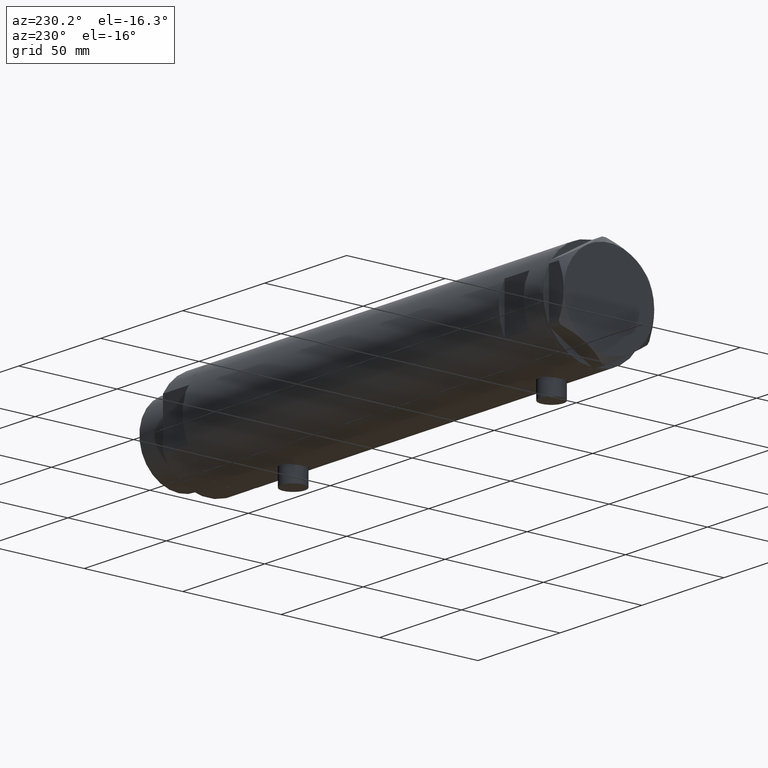
[diagram: clean part render]
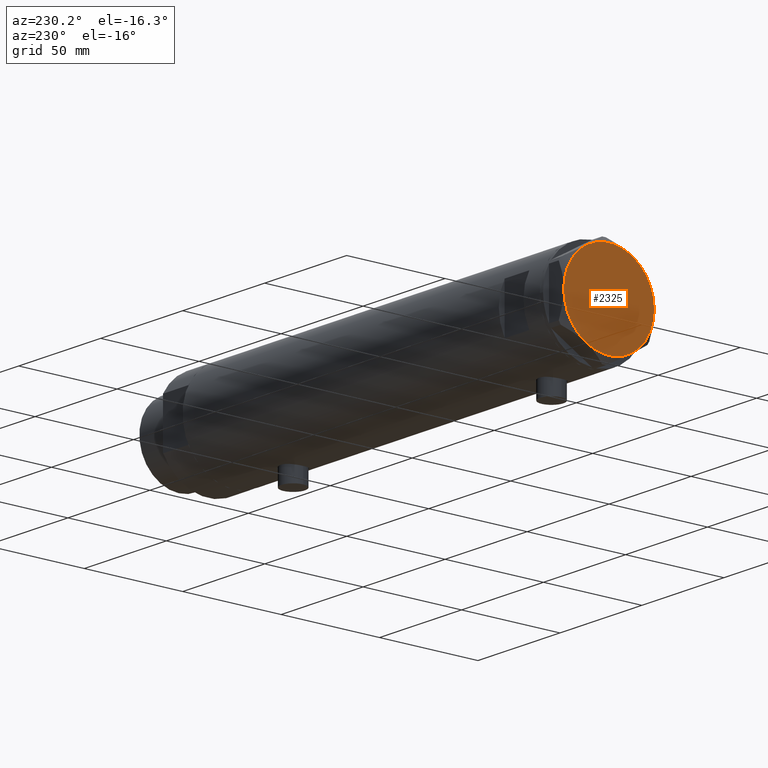
[diagram: same view with one face highlighted and labeled with its STEP entity id]
A machine part, auxiliary view. The second image highlights one B-rep face of the part: STEP entity #2325.
In plain terms, the highlighted planar face has unit normal (-1, -0, 0).
Its self-contained STEP definition (entity closure, byte-faithful):
#29 = CARTESIAN_POINT ( 'NONE',  ( 11.50000000000018296, -19.91858428704203732, 9.000000000000000000 ) ) ;
#37 = FACE_OUTER_BOUND ( 'NONE', #2751, .T. ) ;
#92 = CARTESIAN_POINT ( 'NONE',  ( 0.000000000000000000, 0.000000000000000000, 9.000000000000000000 ) ) ;
#179 = EDGE_CURVE ( 'NONE', #1241, #182, #3504, .T. ) ;
#182 = VERTEX_POINT ( 'NONE', #29 ) ;
#246 = ORIENTED_EDGE ( 'NONE', *, *, #3948, .T. ) ;
#383 = ORIENTED_EDGE ( 'NONE', *, *, #179, .T. ) ;
#426 = EDGE_CURVE ( 'NONE', #182, #3302, #4700, .T. ) ;
#884 = DIRECTION ( 'NONE',  ( 0.000000000000000000, 0.000000000000000000, 1.000000000000000000 ) ) ;
#969 = DIRECTION ( 'NONE',  ( 0.000000000000000000, 0.000000000000000000, 1.000000000000000000 ) ) ;
#1023 = VERTEX_POINT ( 'NONE', #1660 ) ;
#1172 = DIRECTION ( 'NONE',  ( 0.000000000000000000, 0.000000000000000000, 1.000000000000000000 ) ) ;
#1234 = DIRECTION ( 'NONE',  ( 1.000000000000000000, 0.000000000000000000, -0.000000000000000000 ) ) ;
#1241 = VERTEX_POINT ( 'NONE', #4754 ) ;
#1274 = VERTEX_POINT ( 'NONE', #2748 ) ;
#1551 = CARTESIAN_POINT ( 'NONE',  ( 0.000000000000000000, 0.000000000000000000, 9.000000000000000000 ) ) ;
#1626 = CARTESIAN_POINT ( 'NONE',  ( 0.000000000000000000, 0.000000000000000000, 9.000000000000000000 ) ) ;
#1630 = EDGE_CURVE ( 'NONE', #1274, #2371, #4384, .T. ) ;
#1660 = CARTESIAN_POINT ( 'NONE',  ( -23.00000000000004619, -8.112498833180673323E-14, 9.000000000000000000 ) ) ;
#1727 = EDGE_CURVE ( 'NONE', #1023, #1241, #2170, .T. ) ;
#2094 = DIRECTION ( 'NONE',  ( 1.000000000000000000, 0.000000000000000000, 0.000000000000000000 ) ) ;
#2109 = CIRCLE ( 'NONE', #3361, 23.00000000000004619 ) ;
#2170 = CIRCLE ( 'NONE', #3832, 23.00000000000004619 ) ;
#2321 = DIRECTION ( 'NONE',  ( 0.000000000000000000, 0.000000000000000000, 1.000000000000000000 ) ) ;
#2325 = ADVANCED_FACE ( 'NONE', ( #37 ), #3025, .T. ) ;
#2350 = CARTESIAN_POINT ( 'NONE',  ( 22.99999999999995026, 2.373657066004705010E-13, 9.000000000000000000 ) ) ;
#2369 = DIRECTION ( 'NONE',  ( 1.000000000000000000, 0.000000000000000000, 0.000000000000000000 ) ) ;
#2371 = VERTEX_POINT ( 'NONE', #3552 ) ;
#2407 = DIRECTION ( 'NONE',  ( 0.000000000000000000, 0.000000000000000000, 1.000000000000000000 ) ) ;
#2482 = AXIS2_PLACEMENT_3D ( 'NONE', #3472, #1172, #2369 ) ;
#2563 = AXIS2_PLACEMENT_3D ( 'NONE', #1626, #4217, #4602 ) ;
#2748 = CARTESIAN_POINT ( 'NONE',  ( 11.49999999999990408, 19.91858428704219364, 9.000000000000000000 ) ) ;
#2751 = EDGE_LOOP ( 'NONE', ( #4612, #3285, #4062, #246, #3000, #383 ) ) ;
#3000 = ORIENTED_EDGE ( 'NONE', *, *, #1727, .T. ) ;
#3025 = PLANE ( 'NONE',  #3836 ) ;
#3285 = ORIENTED_EDGE ( 'NONE', *, *, #4824, .T. ) ;
#3302 = VERTEX_POINT ( 'NONE', #2350 ) ;
#3361 = AXIS2_PLACEMENT_3D ( 'NONE', #3487, #2407, #3875 ) ;
#3472 = CARTESIAN_POINT ( 'NONE',  ( 0.000000000000000000, 0.000000000000000000, 9.000000000000000000 ) ) ;
#3487 = CARTESIAN_POINT ( 'NONE',  ( 0.000000000000000000, 0.000000000000000000, 9.000000000000000000 ) ) ;
#3504 = CIRCLE ( 'NONE', #2482, 23.00000000000004619 ) ;
#3552 = CARTESIAN_POINT ( 'NONE',  ( -11.50000000000004441, 19.91858428704211548, 9.000000000000000000 ) ) ;
#3832 = AXIS2_PLACEMENT_3D ( 'NONE', #92, #2321, #3838 ) ;
#3836 = AXIS2_PLACEMENT_3D ( 'NONE', #1551, #4208, #1234 ) ;
#3838 = DIRECTION ( 'NONE',  ( 1.000000000000000000, 0.000000000000000000, 0.000000000000000000 ) ) ;
#3875 = DIRECTION ( 'NONE',  ( 1.000000000000000000, 0.000000000000000000, 0.000000000000000000 ) ) ;
#3948 = EDGE_CURVE ( 'NONE', #2371, #1023, #2109, .T. ) ;
#3992 = AXIS2_PLACEMENT_3D ( 'NONE', #4211, #969, #2094 ) ;
#4019 = CIRCLE ( 'NONE', #4565, 23.00000000000004619 ) ;
#4062 = ORIENTED_EDGE ( 'NONE', *, *, #1630, .T. ) ;
#4208 = DIRECTION ( 'NONE',  ( 0.000000000000000000, 0.000000000000000000, 1.000000000000000000 ) ) ;
#4211 = CARTESIAN_POINT ( 'NONE',  ( 0.000000000000000000, 0.000000000000000000, 9.000000000000000000 ) ) ;
#4217 = DIRECTION ( 'NONE',  ( 0.000000000000000000, 0.000000000000000000, 1.000000000000000000 ) ) ;
#4239 = DIRECTION ( 'NONE',  ( 1.000000000000000000, 0.000000000000000000, 0.000000000000000000 ) ) ;
#4384 = CIRCLE ( 'NONE', #3992, 23.00000000000004619 ) ;
#4565 = AXIS2_PLACEMENT_3D ( 'NONE', #4668, #884, #4239 ) ;
#4602 = DIRECTION ( 'NONE',  ( 1.000000000000000000, 0.000000000000000000, 0.000000000000000000 ) ) ;
#4612 = ORIENTED_EDGE ( 'NONE', *, *, #426, .T. ) ;
#4668 = CARTESIAN_POINT ( 'NONE',  ( 0.000000000000000000, 0.000000000000000000, 9.000000000000000000 ) ) ;
#4700 = CIRCLE ( 'NONE', #2563, 23.00000000000004619 ) ;
#4754 = CARTESIAN_POINT ( 'NONE',  ( -11.49999999999990585, -19.91858428704219364, 9.000000000000000000 ) ) ;
#4824 = EDGE_CURVE ( 'NONE', #3302, #1274, #4019, .T. ) ;